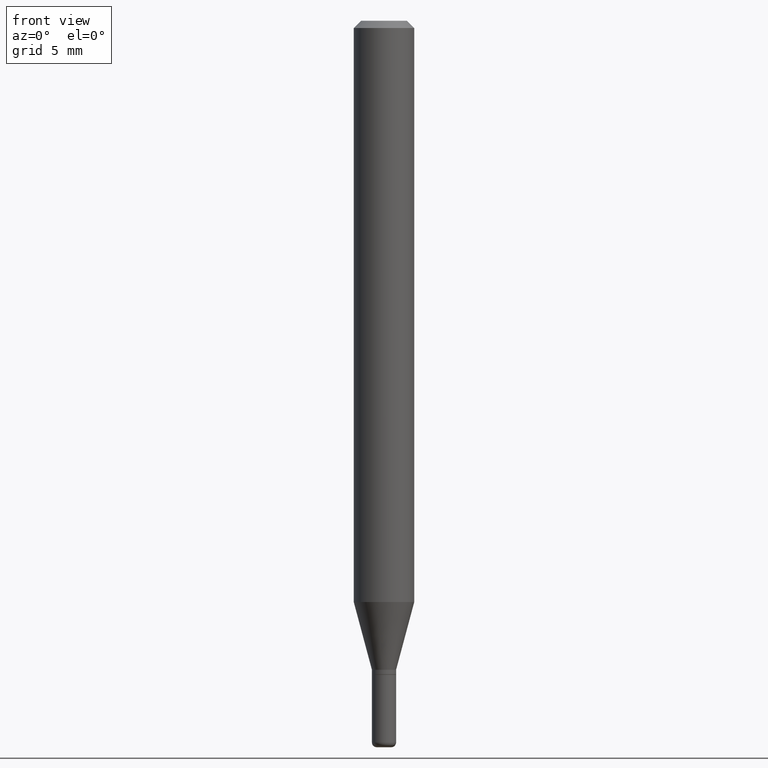
[diagram: clean part render]
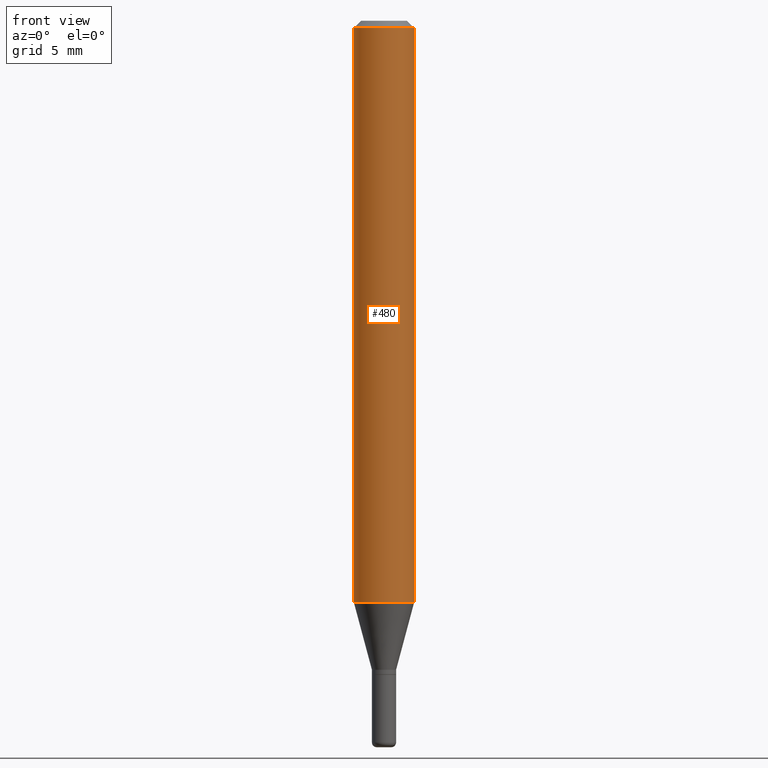
[diagram: same view with one face highlighted and labeled with its STEP entity id]
A machine part, front view. The second image highlights one B-rep face of the part: STEP entity #480.
In plain terms, the highlighted cylindrical surface (edge-blend (fillet) strip) has radius 1.5875 mm, axis along (-0, 0, 1).
Its self-contained STEP definition (entity closure, byte-faithful):
#24 = EDGE_CURVE ( 'NONE', #292, #185, #58, .T. ) ;
#46 = CARTESIAN_POINT ( 'NONE',  ( -0.06250000000000000000, -3.745856318565706082E-15, -1.200048094716167135 ) ) ;
#58 = LINE ( 'NONE', #465, #214 ) ;
#60 = EDGE_CURVE ( 'NONE', #292, #167, #499, .T. ) ;
#65 = EDGE_CURVE ( 'NONE', #185, #371, #195, .T. ) ;
#68 = CARTESIAN_POINT ( 'NONE',  ( 2.934680181550293043E-29, -4.189945528415768698E-15, -1.200048094716167135 ) ) ;
#89 = DIRECTION ( 'NONE',  ( -2.445468806185136877E-29, 3.491481338843145188E-15, 1.000000000000000000 ) ) ;
#122 = CARTESIAN_POINT ( 'NONE',  ( -0.06250000000000000000, -1.677069664399144681E-15, -0.01499999999999970281 ) ) ;
#126 = CARTESIAN_POINT ( 'NONE',  ( 0.06250000000000000000, -4.364351673553916694E-16, 3.047610484872459871E-30 ) ) ;
#136 = FACE_OUTER_BOUND ( 'NONE', #288, .T. ) ;
#142 = DIRECTION ( 'NONE',  ( 1.000000000000000000, -6.982962677686266711E-15, 4.876176775795935793E-29 ) ) ;
#164 = ORIENTED_EDGE ( 'NONE', *, *, #355, .T. ) ;
#167 = VERTEX_POINT ( 'NONE', #199 ) ;
#181 = ORIENTED_EDGE ( 'NONE', *, *, #65, .F. ) ;
#185 = VERTEX_POINT ( 'NONE', #122 ) ;
#195 = CIRCLE ( 'NONE', #438, 0.06250000000000000000 ) ;
#199 = CARTESIAN_POINT ( 'NONE',  ( 0.06250000000000000000, -4.626380695771160368E-15, -1.200048094716167135 ) ) ;
#214 = VECTOR ( 'NONE', #348, 39.37007874015748143 ) ;
#218 = ORIENTED_EDGE ( 'NONE', *, *, #24, .F. ) ;
#219 = CYLINDRICAL_SURFACE ( 'NONE', #446, 0.06250000000000000000 ) ;
#226 = CARTESIAN_POINT ( 'NONE',  ( 0.06250000000000000000, -4.888073874380378612E-16, -0.01499999999999970281 ) ) ;
#279 = DIRECTION ( 'NONE',  ( -2.445468806185136597E-29, 3.491481338843145583E-15, 1.000000000000000000 ) ) ;
#288 = EDGE_LOOP ( 'NONE', ( #218, #343, #164, #181 ) ) ;
#292 = VERTEX_POINT ( 'NONE', #46 ) ;
#343 = ORIENTED_EDGE ( 'NONE', *, *, #60, .T. ) ;
#348 = DIRECTION ( 'NONE',  ( -2.445468806185136877E-29, 3.491481338843145188E-15, 1.000000000000000000 ) ) ;
#355 = EDGE_CURVE ( 'NONE', #167, #371, #516, .T. ) ;
#371 = VERTEX_POINT ( 'NONE', #226 ) ;
#380 = DIRECTION ( 'NONE',  ( -2.445468806185136597E-29, 3.491481338843145583E-15, 1.000000000000000000 ) ) ;
#397 = DIRECTION ( 'NONE',  ( -2.445468806185136597E-29, 3.491481338843145583E-15, 1.000000000000000000 ) ) ;
#415 = CARTESIAN_POINT ( 'NONE',  ( 0.000000000000000000, 0.000000000000000000, 0.000000000000000000 ) ) ;
#421 = VECTOR ( 'NONE', #89, 39.37007874015748143 ) ;
#434 = DIRECTION ( 'NONE',  ( 1.000000000000000000, -6.982962677686266711E-15, 0.000000000000000000 ) ) ;
#438 = AXIS2_PLACEMENT_3D ( 'NONE', #512, #279, #434 ) ;
#446 = AXIS2_PLACEMENT_3D ( 'NONE', #415, #380, #142 ) ;
#454 = AXIS2_PLACEMENT_3D ( 'NONE', #68, #397, #469 ) ;
#465 = CARTESIAN_POINT ( 'NONE',  ( -0.06250000000000000000, 4.440892098500626162E-16, -3.074334431409316114E-30 ) ) ;
#469 = DIRECTION ( 'NONE',  ( 1.000000000000000000, -6.982962677686262766E-15, 0.000000000000000000 ) ) ;
#480 = ADVANCED_FACE ( 'NONE', ( #136 ), #219, .T. ) ;
#499 = CIRCLE ( 'NONE', #454, 0.06250000000000000000 ) ;
#512 = CARTESIAN_POINT ( 'NONE',  ( 3.668203209277632395E-31, -5.237222008264614861E-17, -0.01499999999999970281 ) ) ;
#516 = LINE ( 'NONE', #126, #421 ) ;